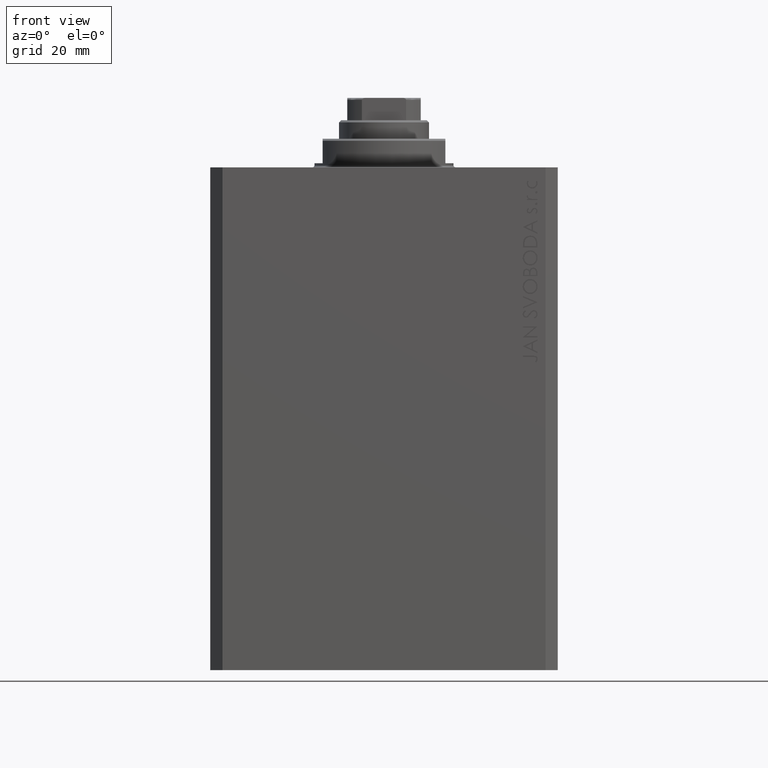
[diagram: clean part render]
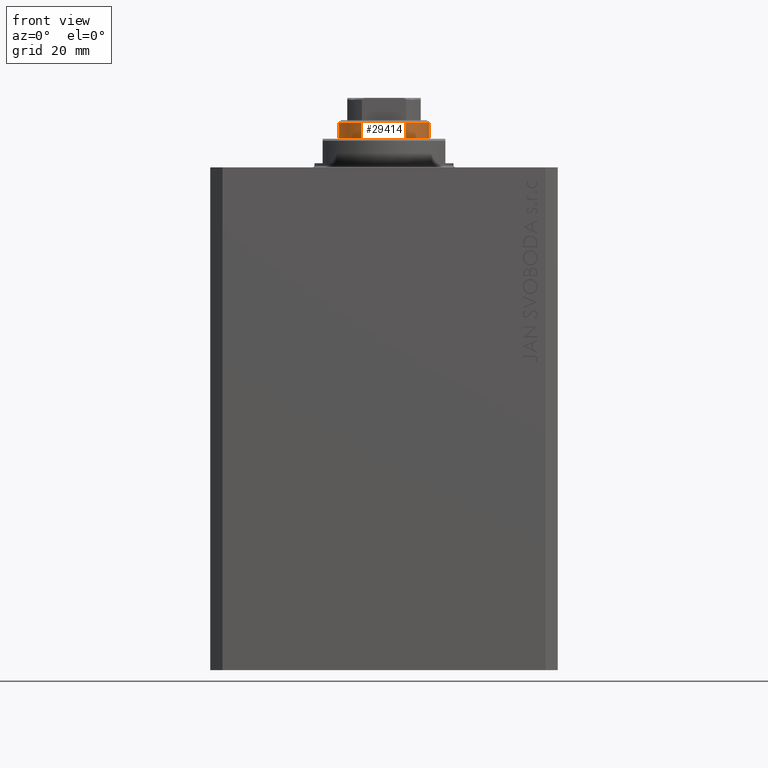
[diagram: same view with one face highlighted and labeled with its STEP entity id]
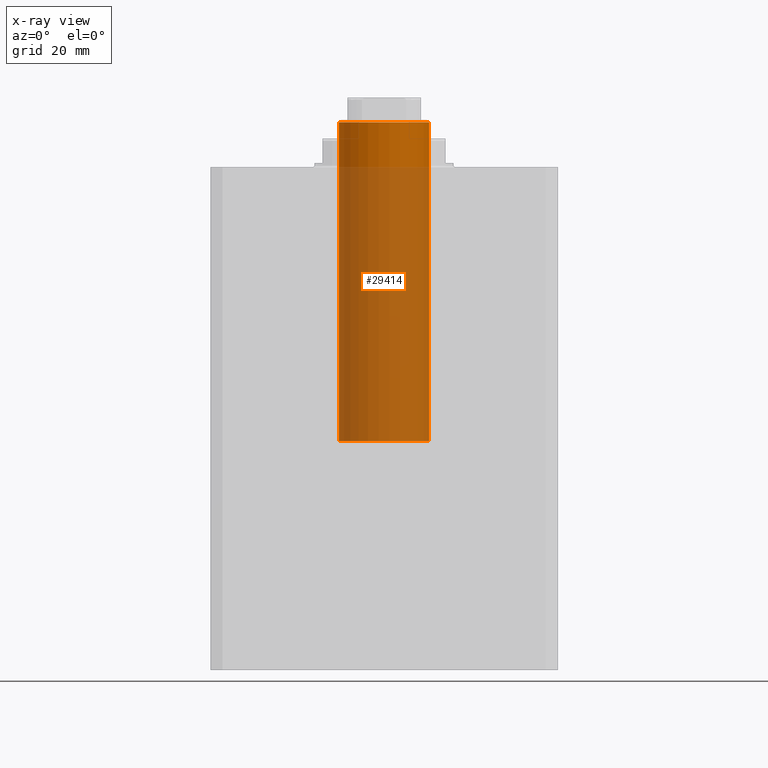
[diagram: x-ray of the same camera — body ghosted, the highlighted face saturated]
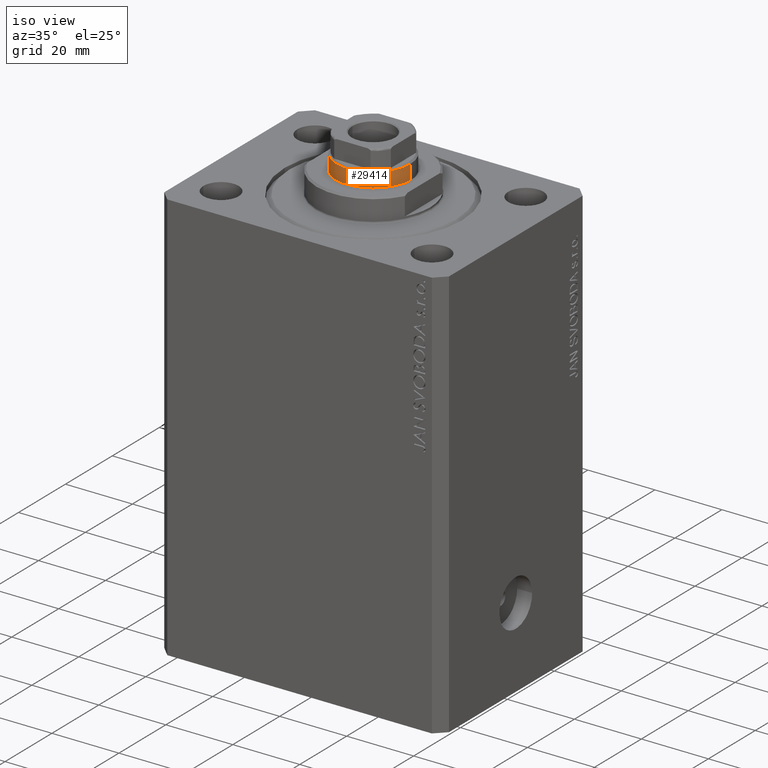
[diagram: same view with one face highlighted and labeled with its STEP entity id]
A machine part, front view. The second image highlights one B-rep face of the part: STEP entity #29414.
The next image is the same camera in x-ray: the body ghosted, the highlighted face saturated — about 86% of this face is hidden behind the body in this view.
A second angle (iso view) of the same face is appended — the face is thin or edge-on in the first view.
In plain terms, the highlighted cylindrical surface (partial cylindrical patch) has radius 11 mm, axis along (-0, -0, -1).
Its self-contained STEP definition (entity closure, byte-faithful):
#865 = CARTESIAN_POINT ( 'NONE',  ( -11.00000000000000000, 0.000000000000000000, 44.60000000000000142 ) ) ;
#876 = CARTESIAN_POINT ( 'NONE',  ( 0.000000000000000000, 0.000000000000000000, 122.6000000000000085 ) ) ;
#1424 = CARTESIAN_POINT ( 'NONE',  ( -11.00000000000000000, 0.000000000000000000, 122.6000000000000085 ) ) ;
#3589 = AXIS2_PLACEMENT_3D ( 'NONE', #876, #12565, #4476 ) ;
#4476 = DIRECTION ( 'NONE',  ( 1.000000000000000000, 0.000000000000000000, 0.000000000000000000 ) ) ;
#5784 = VERTEX_POINT ( 'NONE', #1424 ) ;
#5866 = AXIS2_PLACEMENT_3D ( 'NONE', #39152, #32682, #46597 ) ;
#7919 = AXIS2_PLACEMENT_3D ( 'NONE', #20722, #46603, #25026 ) ;
#8194 = VECTOR ( 'NONE', #34921, 1000.000000000000000 ) ;
#8688 = EDGE_CURVE ( 'NONE', #33895, #5784, #37226, .T. ) ;
#9092 = CARTESIAN_POINT ( 'NONE',  ( 11.00000000000000000, 1.347111479062088405E-15, 122.6000000000000085 ) ) ;
#12304 = EDGE_LOOP ( 'NONE', ( #30523, #13936, #31941, #46643 ) ) ;
#12565 = DIRECTION ( 'NONE',  ( 0.000000000000000000, 0.000000000000000000, -1.000000000000000000 ) ) ;
#13936 = ORIENTED_EDGE ( 'NONE', *, *, #8688, .T. ) ;
#14241 = VECTOR ( 'NONE', #34252, 1000.000000000000000 ) ;
#20547 = LINE ( 'NONE', #45716, #8194 ) ;
#20722 = CARTESIAN_POINT ( 'NONE',  ( 0.000000000000000000, 0.000000000000000000, 123.0999999999999943 ) ) ;
#23223 = CARTESIAN_POINT ( 'NONE',  ( 11.00000000000000000, 1.347111479062088405E-15, 44.60000000000000142 ) ) ;
#23225 = CARTESIAN_POINT ( 'NONE',  ( 11.00000000000000000, 1.347111479062088405E-15, 123.0999999999999943 ) ) ;
#24076 = FACE_OUTER_BOUND ( 'NONE', #12304, .T. ) ;
#25026 = DIRECTION ( 'NONE',  ( -1.000000000000000000, 0.000000000000000000, 0.000000000000000000 ) ) ;
#27304 = LINE ( 'NONE', #23225, #14241 ) ;
#27676 = CYLINDRICAL_SURFACE ( 'NONE', #7919, 11.00000000000000000 ) ;
#29414 = ADVANCED_FACE ( 'NONE', ( #24076 ), #27676, .T. ) ;
#29611 = VERTEX_POINT ( 'NONE', #865 ) ;
#30523 = ORIENTED_EDGE ( 'NONE', *, *, #41368, .F. ) ;
#31941 = ORIENTED_EDGE ( 'NONE', *, *, #38123, .T. ) ;
#32639 = VERTEX_POINT ( 'NONE', #23223 ) ;
#32682 = DIRECTION ( 'NONE',  ( 0.000000000000000000, 0.000000000000000000, 1.000000000000000000 ) ) ;
#33895 = VERTEX_POINT ( 'NONE', #9092 ) ;
#34252 = DIRECTION ( 'NONE',  ( -0.000000000000000000, -0.000000000000000000, -1.000000000000000000 ) ) ;
#34921 = DIRECTION ( 'NONE',  ( -0.000000000000000000, -0.000000000000000000, -1.000000000000000000 ) ) ;
#36435 = EDGE_CURVE ( 'NONE', #29611, #32639, #37174, .T. ) ;
#37174 = CIRCLE ( 'NONE', #5866, 11.00000000000000000 ) ;
#37226 = CIRCLE ( 'NONE', #3589, 11.00000000000000000 ) ;
#38123 = EDGE_CURVE ( 'NONE', #5784, #29611, #20547, .T. ) ;
#39152 = CARTESIAN_POINT ( 'NONE',  ( 0.000000000000000000, 0.000000000000000000, 44.60000000000000142 ) ) ;
#41368 = EDGE_CURVE ( 'NONE', #33895, #32639, #27304, .T. ) ;
#45716 = CARTESIAN_POINT ( 'NONE',  ( -11.00000000000000000, 0.000000000000000000, 123.0999999999999943 ) ) ;
#46597 = DIRECTION ( 'NONE',  ( 1.000000000000000000, 0.000000000000000000, 0.000000000000000000 ) ) ;
#46603 = DIRECTION ( 'NONE',  ( -0.000000000000000000, -0.000000000000000000, -1.000000000000000000 ) ) ;
#46643 = ORIENTED_EDGE ( 'NONE', *, *, #36435, .T. ) ;